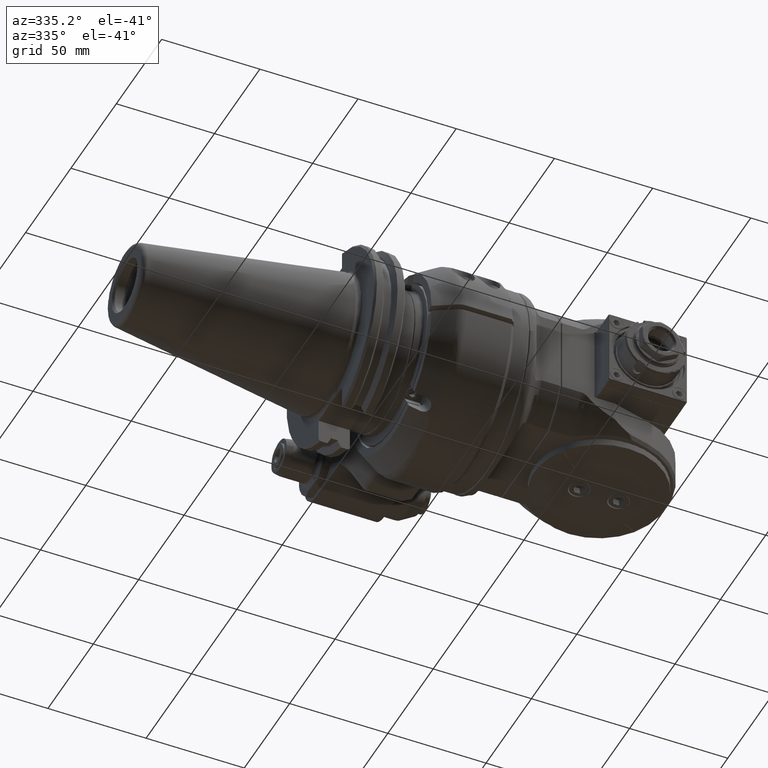
[diagram: clean part render]
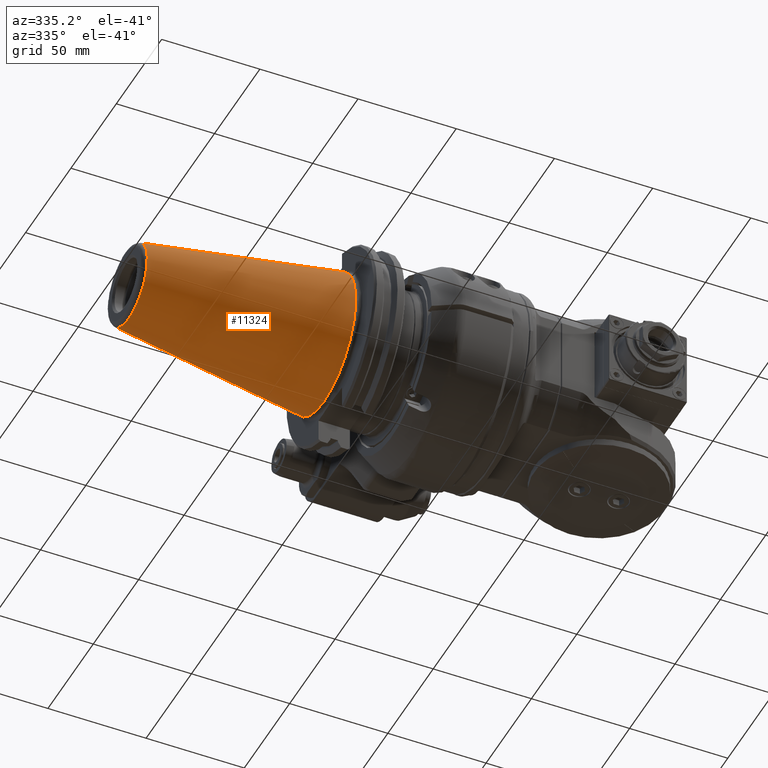
[diagram: same view with one face highlighted and labeled with its STEP entity id]
A machine part, auxiliary view. The second image highlights one B-rep face of the part: STEP entity #11324.
In plain terms, the highlighted conical surface has half-angle 8.297 deg.
Its self-contained STEP definition (entity closure, byte-faithful):
#375=CONICAL_SURFACE('',#12507,27.67265681028,0.144812411498922);
#932=CIRCLE('',#12505,34.925);
#933=CIRCLE('',#12506,34.925);
#934=CIRCLE('',#12508,20.42031362057);
#935=CIRCLE('',#12509,20.42031362057);
#1570=FACE_OUTER_BOUND('',#2327,.T.);
#2327=EDGE_LOOP('',(#10012,#10013,#10014,#10015,#10016,#10017));
#3118=LINE('',#61084,#3915);
#3915=VECTOR('',#15441,27.67265681028);
#5319=VERTEX_POINT('',#61077);
#5320=VERTEX_POINT('',#61078);
#5321=VERTEX_POINT('',#61083);
#5322=VERTEX_POINT('',#61085);
#6907=EDGE_CURVE('',#5319,#5320,#932,.T.);
#6909=EDGE_CURVE('',#5320,#5319,#933,.T.);
#6910=EDGE_CURVE('',#5319,#5321,#3118,.T.);
#6911=EDGE_CURVE('',#5322,#5321,#934,.T.);
#6912=EDGE_CURVE('',#5321,#5322,#935,.T.);
#10012=ORIENTED_EDGE('',*,*,#6907,.F.);
#10013=ORIENTED_EDGE('',*,*,#6910,.T.);
#10014=ORIENTED_EDGE('',*,*,#6911,.F.);
#10015=ORIENTED_EDGE('',*,*,#6912,.F.);
#10016=ORIENTED_EDGE('',*,*,#6910,.F.);
#10017=ORIENTED_EDGE('',*,*,#6909,.F.);
#11324=ADVANCED_FACE('',(#1570),#375,.T.);
#12505=AXIS2_PLACEMENT_3D('',#61079,#15434,#15435);
#12506=AXIS2_PLACEMENT_3D('',#61081,#15437,#15438);
#12507=AXIS2_PLACEMENT_3D('',#61082,#15439,#15440);
#12508=AXIS2_PLACEMENT_3D('',#61086,#15442,#15443);
#12509=AXIS2_PLACEMENT_3D('',#61087,#15444,#15445);
#15434=DIRECTION('center_axis',(1.,0.,0.));
#15435=DIRECTION('ref_axis',(0.,8.524644438195E-10,-1.));
#15437=DIRECTION('center_axis',(1.,0.,0.));
#15438=DIRECTION('ref_axis',(0.,8.524644438195E-10,-1.));
#15439=DIRECTION('center_axis',(1.,0.,0.));
#15440=DIRECTION('ref_axis',(0.,8.524644438195E-10,-1.));
#15441=DIRECTION('',(-0.98953299358046,1.23016439845378E-10,-0.144306807239621));
#15442=DIRECTION('center_axis',(-1.,0.,0.));
#15443=DIRECTION('ref_axis',(0.,8.524644438195E-10,-1.));
#15444=DIRECTION('center_axis',(-1.,0.,0.));
#15445=DIRECTION('ref_axis',(0.,8.524644438195E-10,-1.));
#61077=CARTESIAN_POINT('',(-85.9999999999999,-2.9772320700396E-8,34.925));
#61078=CARTESIAN_POINT('',(-85.9999999999996,2.97723164233181E-8,-34.9250000000012));
#61079=CARTESIAN_POINT('Origin',(-85.9999999999999,0.,0.));
#61081=CARTESIAN_POINT('Origin',(-85.9999999999999,0.,0.));
#61082=CARTESIAN_POINT('Origin',(-135.73038350905,0.,0.));
#61083=CARTESIAN_POINT('',(-185.460767018099,-1.74075937939408E-8,20.4203136205638));
#61084=CARTESIAN_POINT('',(-135.73038350905,-2.35899593857063E-8,27.67265681028));
#61085=CARTESIAN_POINT('',(-185.4607670181,20.42031362057,1.74075937939461E-8));
#61086=CARTESIAN_POINT('Origin',(-185.4607670181,0.,0.));
#61087=CARTESIAN_POINT('Origin',(-185.4607670181,0.,0.));